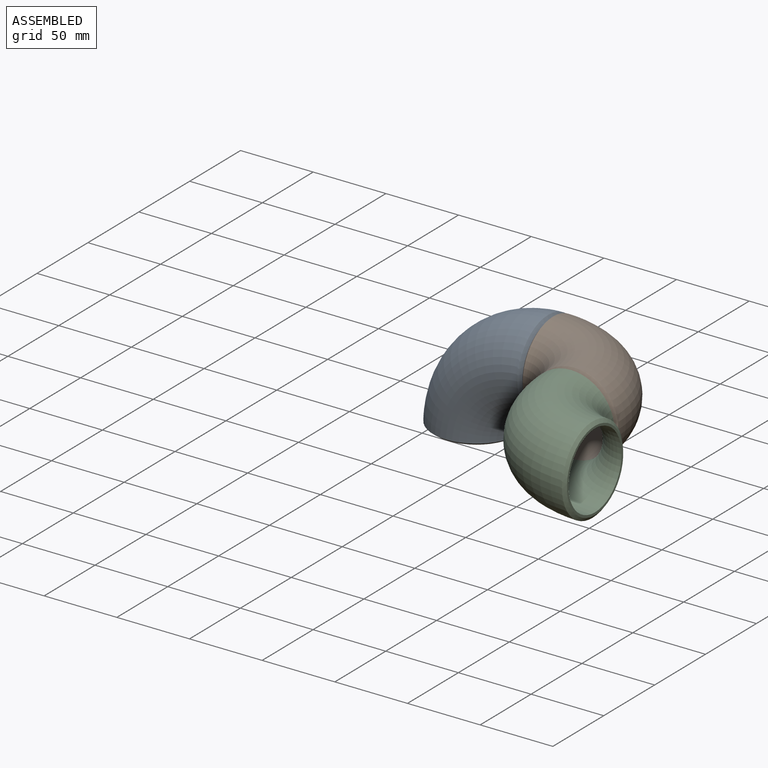
[diagram: assembled view]
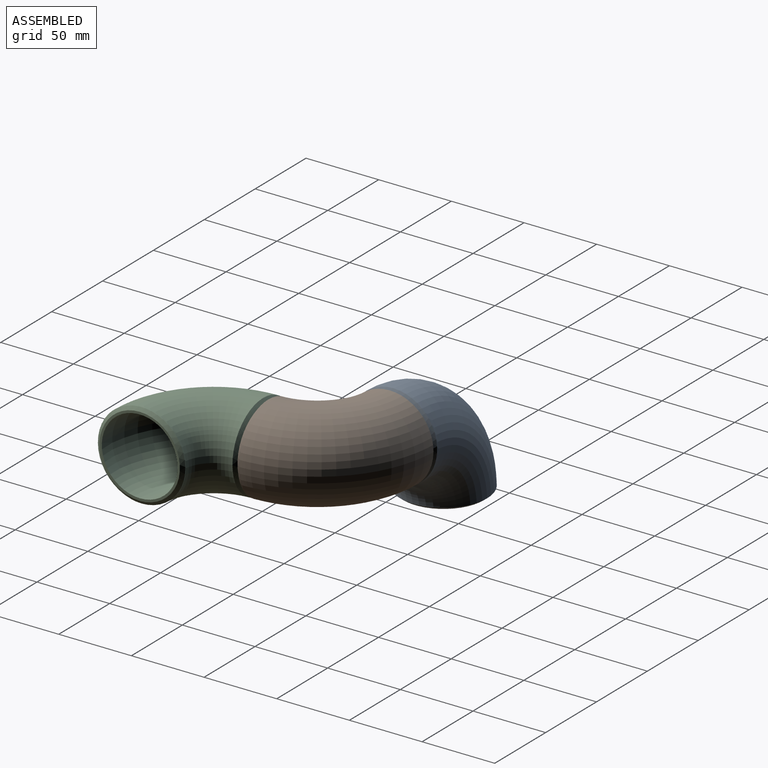
[diagram: assembled view, second angle]
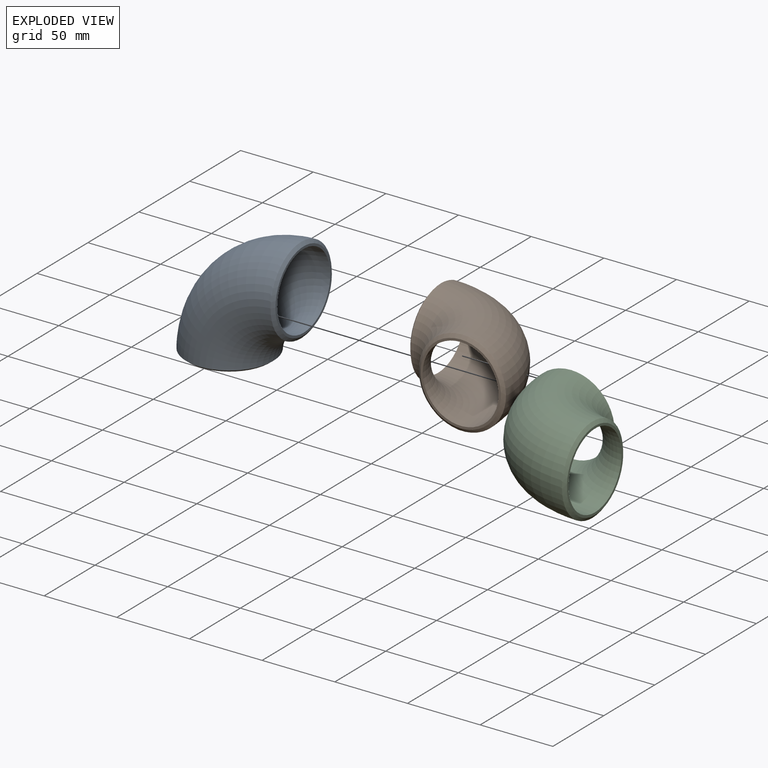
[diagram: exploded view]
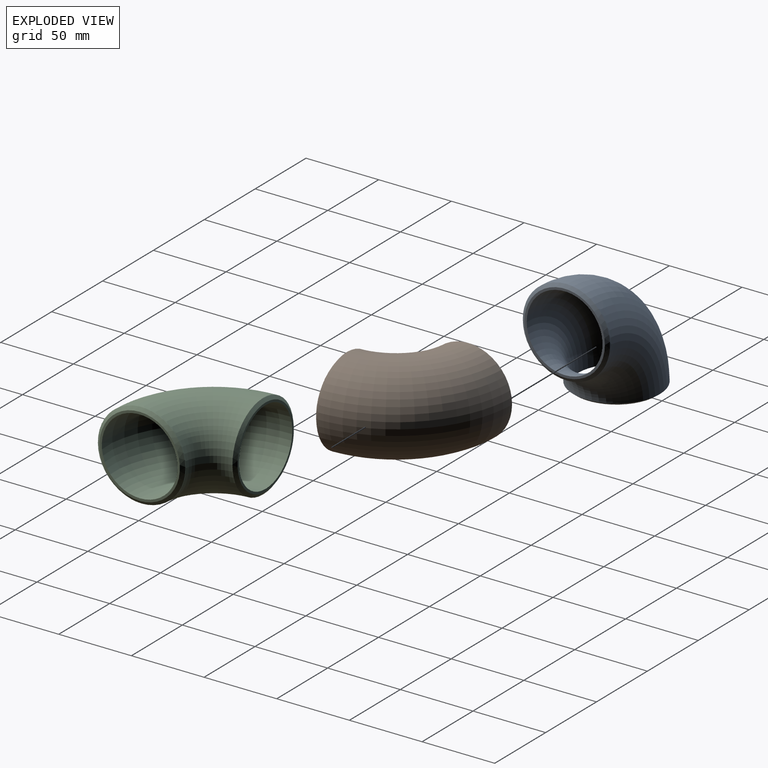
[diagram: exploded view, second angle]
ASSEMBLY  parts=3 mates=4
PART A: 6 faces, bbox 87.7x60.2x87.7 mm
  f0: torus R=51mm, axis (0,-1,0), area 14428.3mm2, adj f4,f5
  f1: plane 55.38x55.38mm, normal (0,0,-1), area 270.3mm2, adj f2,f5
  f2: torus R=51mm, axis (0,-1,0), area 13132.4mm2, adj f1,f3
  f3: plane 55.38x55.38mm, normal (1,0,0), area 270.3mm2, adj f2,f4
  f4: cone r=27.69mm half-angle=52.5deg, axis (-1,0,0), area 530.9mm2, adj f0,f3
  f5: cone r=27.69mm half-angle=52.5deg, axis (0,0,1), area 530.9mm2, adj f0,f1
PART B: same geometry as A
PART C: same geometry as A
PLACE A t=(22.87,20.79,57.43)mm fixed
PLACE B rot(axis=(-0.58,0.58,-0.58),120deg) t=(73.87,20.79,108.43)mm
PLACE C rot(axis=(1,0,0),90deg) t=(124.87,-30.21,108.43)mm
MATE parallel A.f4 <-> B.f5  axis (1,0,0) through (73.87,20.79,108.43)mm
MATE parallel C.f5 <-> B.f4  axis (0,1,0) through (124.87,-30.21,108.43)mm
MATE cylindrical C.f5 <-> B.f4  axis (0,1,0) through (124.87,-30.21,108.43)mm
MATE cylindrical B.f5 <-> A.f4  axis (-1,0,0) through (73.87,20.79,108.43)mm
